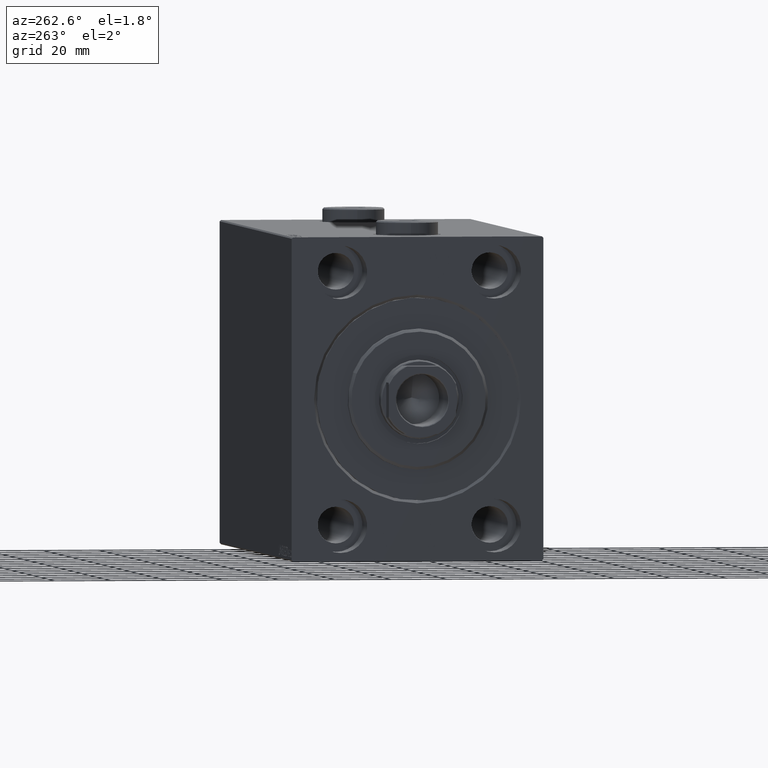
[diagram: clean part render]
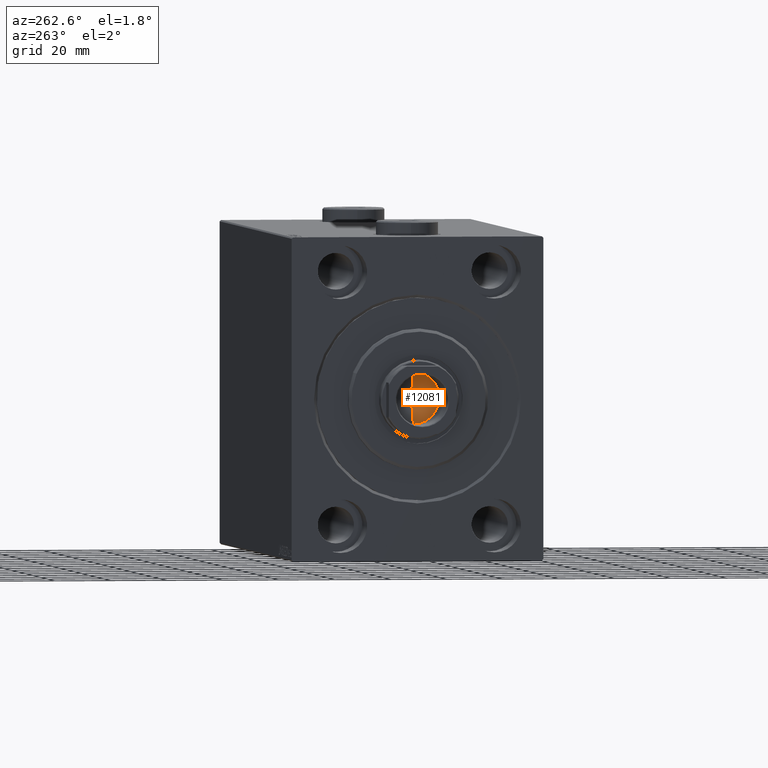
[diagram: same view with one face highlighted and labeled with its STEP entity id]
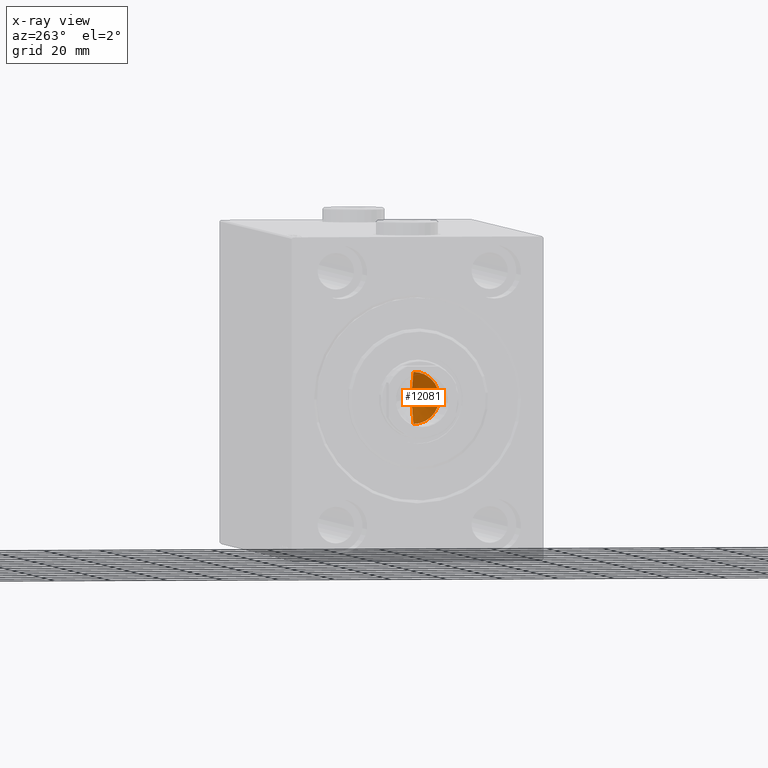
[diagram: x-ray of the same camera — body ghosted, the highlighted face saturated]
A machine part, auxiliary view. The second image highlights one B-rep face of the part: STEP entity #12081.
The next image is the same camera in x-ray: the body ghosted, the highlighted face saturated — about 0% of this face is hidden behind the body in this view.
In plain terms, the highlighted conical surface has half-angle 59 deg.
Its self-contained STEP definition (entity closure, byte-faithful):
#103 = CARTESIAN_POINT ( 'NONE',  ( 9.249999999999994671, 0.000000000000000000, 169.0000000000000000 ) ) ;
#398 = AXIS2_PLACEMENT_3D ( 'NONE', #40238, #2181, #22831 ) ;
#886 = CARTESIAN_POINT ( 'NONE',  ( 0.000000000000000000, 0.000000000000000000, 169.0000000000000000 ) ) ;
#1028 = LINE ( 'NONE', #103, #40792 ) ;
#1883 = ORIENTED_EDGE ( 'NONE', *, *, #17586, .T. ) ;
#2181 = DIRECTION ( 'NONE',  ( -0.000000000000000000, -0.000000000000000000, 1.000000000000000000 ) ) ;
#2725 = FACE_OUTER_BOUND ( 'NONE', #14891, .T. ) ;
#4083 = DIRECTION ( 'NONE',  ( -0.000000000000000000, -0.000000000000000000, 1.000000000000000000 ) ) ;
#4110 = CONICAL_SURFACE ( 'NONE', #12171, 9.249999999999994671, 1.029744258676652535 ) ;
#5926 = VERTEX_POINT ( 'NONE', #18803 ) ;
#7303 = CARTESIAN_POINT ( 'NONE',  ( -9.249999999999994671, 1.132798289211300909E-15, 169.0000000000000000 ) ) ;
#10976 = DIRECTION ( 'NONE',  ( -0.8571673007021113344, 1.049727191138617463E-16, 0.5150380749100558209 ) ) ;
#12081 = ADVANCED_FACE ( 'NONE', ( #2725 ), #4110, .F. ) ;
#12171 = AXIS2_PLACEMENT_3D ( 'NONE', #886, #4083, #32273 ) ;
#14891 = EDGE_LOOP ( 'NONE', ( #40110, #23117, #1883 ) ) ;
#17586 = EDGE_CURVE ( 'NONE', #5926, #28121, #39919, .T. ) ;
#18803 = CARTESIAN_POINT ( 'NONE',  ( -9.249999999999994671, 1.132798289211300909E-15, 169.0000000000000000 ) ) ;
#21144 = VECTOR ( 'NONE', #10976, 1000.000000000000000 ) ;
#22831 = DIRECTION ( 'NONE',  ( 1.000000000000000000, 0.000000000000000000, 0.000000000000000000 ) ) ;
#23117 = ORIENTED_EDGE ( 'NONE', *, *, #31589, .T. ) ;
#24755 = VERTEX_POINT ( 'NONE', #32038 ) ;
#27753 = EDGE_CURVE ( 'NONE', #24755, #28121, #1028, .T. ) ;
#28067 = DIRECTION ( 'NONE',  ( 0.8571673007021113344, 0.000000000000000000, 0.5150380749100558209 ) ) ;
#28121 = VERTEX_POINT ( 'NONE', #29046 ) ;
#29046 = CARTESIAN_POINT ( 'NONE',  ( 9.249999999999994671, 0.000000000000000000, 169.0000000000000000 ) ) ;
#31589 = EDGE_CURVE ( 'NONE', #24755, #5926, #42824, .T. ) ;
#32038 = CARTESIAN_POINT ( 'NONE',  ( -6.793016015247754405E-15, 0.000000000000000000, 163.4420392739950501 ) ) ;
#32273 = DIRECTION ( 'NONE',  ( 1.000000000000000000, 0.000000000000000000, 0.000000000000000000 ) ) ;
#39919 = CIRCLE ( 'NONE', #398, 9.249999999999994671 ) ;
#40110 = ORIENTED_EDGE ( 'NONE', *, *, #27753, .F. ) ;
#40238 = CARTESIAN_POINT ( 'NONE',  ( 0.000000000000000000, 0.000000000000000000, 169.0000000000000000 ) ) ;
#40792 = VECTOR ( 'NONE', #28067, 1000.000000000000000 ) ;
#42824 = LINE ( 'NONE', #7303, #21144 ) ;